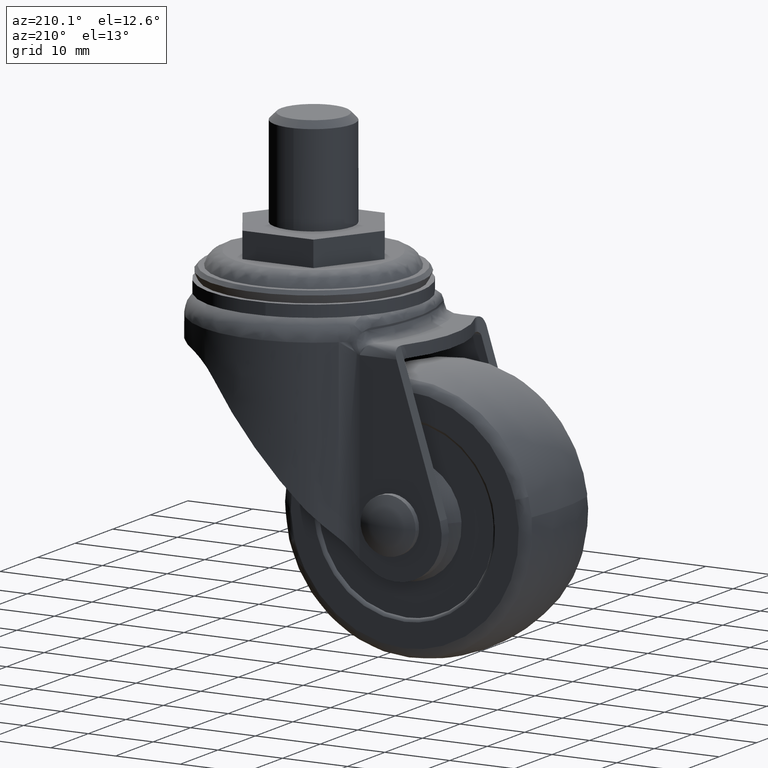
[diagram: clean part render]
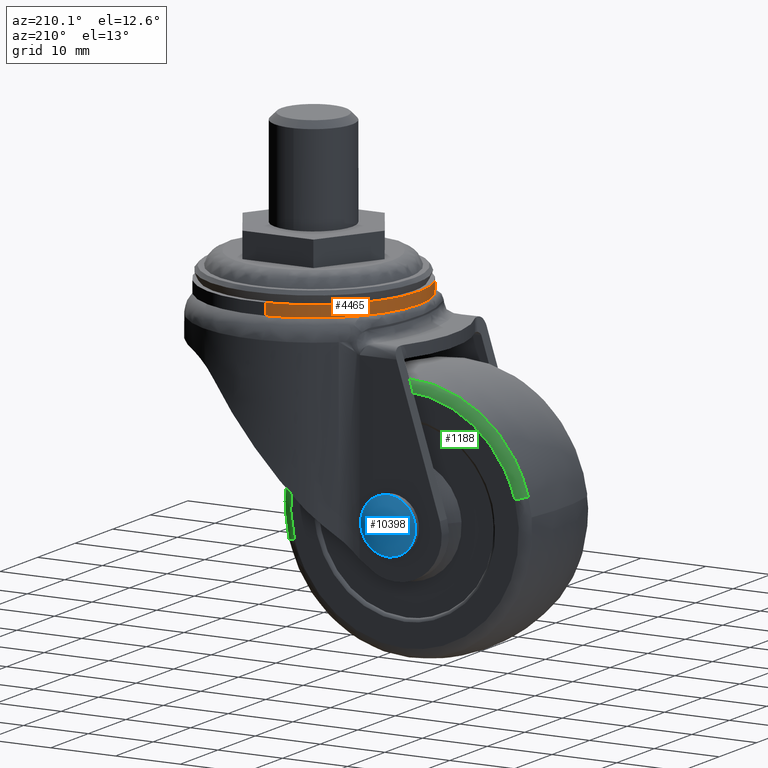
[diagram: same view with three faces highlighted in distinct colors, each labeled with its STEP entity id]
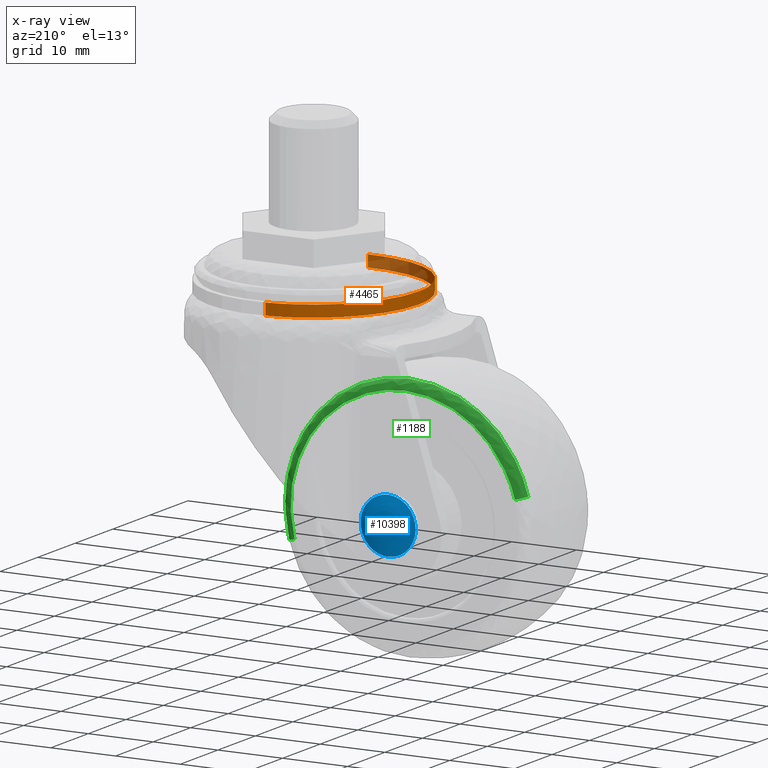
[diagram: x-ray of the same camera — body ghosted, the three highlighted faces saturated]
A machine part, auxiliary view with three faces highlighted in distinct colors.
The next image is the same camera in x-ray (body ghosted, the three faces saturated) — at least one of them is partly hidden behind the body in this view.
Their STEP definitions:

[orange] entity #4465 — the highlighted face is a freeform B-spline surface patch.
#4302=CARTESIAN_POINT('',(-1.918036964130399,16.136407103312980,-8.533079999999202));
#4303=VERTEX_POINT('',#4302);
#4321=CARTESIAN_POINT('',(-1.918037202751808,16.136407074949791,-6.729810000000000));
#4322=VERTEX_POINT('',#4321);
#4323=CARTESIAN_POINT('',(-1.918037202751808,16.136407074949791,-6.729810000000000));
#4324=CARTESIAN_POINT('',(-1.918036964130399,16.136407103312980,-8.533079999999202));
#4325=QUASI_UNIFORM_CURVE('',1,(#4323,#4324),.UNSPECIFIED.,.F.,.U.);
#4326=EDGE_CURVE('',#4322,#4303,#4325,.T.);
#4345=CARTESIAN_POINT('',(0.992038767744949,-16.219690474336769,-6.729810000000001));
#4346=VERTEX_POINT('',#4345);
#4360=CARTESIAN_POINT('',(0.992038767744949,-16.219690474336769,-8.533080000000000));
#4361=VERTEX_POINT('',#4360);
#4362=CARTESIAN_POINT('',(0.992038767744949,-16.219690474336769,-6.729810000000001));
#4363=CARTESIAN_POINT('',(0.992038767744949,-16.219690474336769,-8.533080000000000));
#4364=QUASI_UNIFORM_CURVE('',1,(#4362,#4363),.UNSPECIFIED.,.F.,.U.);
#4365=EDGE_CURVE('',#4346,#4361,#4364,.T.);
#4383=CARTESIAN_POINT('',(0.992038767441426,-16.219690474355339,-6.684728249999999));
#4384=CARTESIAN_POINT('',(-15.227651706913909,-17.211729241796768,-6.684728249999999));
#4385=CARTESIAN_POINT('',(-16.219690474355339,-0.992038767441426,-6.684728249999999));
#4386=CARTESIAN_POINT('',(-17.156525696903575,14.325081726141899,-6.684728250000001));
#4387=CARTESIAN_POINT('',(-1.918056313172325,16.136404803409580,-6.684728249999999));
#4388=CARTESIAN_POINT('',(0.992038767441426,-16.219690474355339,-8.579288793750003));
#4389=CARTESIAN_POINT('',(-15.227651706913909,-17.211729241796768,-8.579288793750003));
#4390=CARTESIAN_POINT('',(-16.219690474355339,-0.992038767441426,-8.579288793750003));
#4391=CARTESIAN_POINT('',(-17.156525696903575,14.325081726141899,-8.579288793750001));
#4392=CARTESIAN_POINT('',(-1.918056313172325,16.136404803409580,-8.579288793750006));
#4400=(BOUNDED_SURFACE()B_SPLINE_SURFACE(2,1,((#4383,#4388),(#4384,#4389),(#4385,#4390),(#4386,#4391),(#4387,#4392)),.UNSPECIFIED.,.F.,.F.,.U.)B_SPLINE_SURFACE_WITH_KNOTS((3,2,3),(2,2),(0.0,26.923881554251171,52.770807846332303),(0.0,1.0),.UNSPECIFIED.)GEOMETRIC_REPRESENTATION_ITEM()RATIONAL_B_SPLINE_SURFACE(((1.0,1.0),(0.707106781186548,0.707106781186548),(1.0,1.0),(0.718822509939086,0.718822509939086),(0.977505800795127,0.977505800795127)))REPRESENTATION_ITEM('')SURFACE());
#4401=CARTESIAN_POINT('',(-16.250000000000000,0.0,-8.533080000000000));
#4402=VERTEX_POINT('',#4401);
#4403=CARTESIAN_POINT('',(-16.250000000000000,0.0,-8.533080000000000));
#4404=CARTESIAN_POINT('',(-16.250000000000007,14.432853474852854,-8.533080000000000));
#4405=CARTESIAN_POINT('',(-1.918036964130399,16.136407103312983,-8.533079999999204));
#4413=(BOUNDED_CURVE()B_SPLINE_CURVE(2,(#4403,#4404,#4405),.UNSPECIFIED.,.F.,.U.)B_SPLINE_CURVE_WITH_KNOTS((3,3),(0.0,0.229562676166187),.UNSPECIFIED.)CURVE()GEOMETRIC_REPRESENTATION_ITEM()RATIONAL_B_SPLINE_CURVE((1.0,0.731050595433021,0.956027151391627))REPRESENTATION_ITEM(''));
#4414=EDGE_CURVE('',#4402,#4303,#4413,.T.);
#4415=ORIENTED_EDGE('',*,*,#4414,.F.);
#4416=CARTESIAN_POINT('',(0.992038767744949,-16.219690474336772,-8.533080000000000));
#4417=CARTESIAN_POINT('',(0.496482403906443,-16.250000000000000,-8.533080000000000));
#4418=CARTESIAN_POINT('',(0.0,-16.250000000000000,-8.533080000000000));
#4419=CARTESIAN_POINT('',(-16.250000000000004,-16.250000000000004,-8.533080000000000));
#4420=CARTESIAN_POINT('',(-16.250000000000000,0.0,-8.533080000000000));
#4428=(BOUNDED_CURVE()B_SPLINE_CURVE(2,(#4416,#4417,#4418,#4419,#4420),.UNSPECIFIED.,.F.,.U.)B_SPLINE_CURVE_WITH_KNOTS((3,2,3),(0.739332962235510,0.750000000000000,1.0),.UNSPECIFIED.)CURVE()GEOMETRIC_REPRESENTATION_ITEM()RATIONAL_B_SPLINE_CURVE((0.976072041659361,0.987502787895816,1.0,0.707106781186547,1.0))REPRESENTATION_ITEM(''));
#4429=EDGE_CURVE('',#4361,#4402,#4428,.T.);
#4430=ORIENTED_EDGE('',*,*,#4429,.F.);
#4431=ORIENTED_EDGE('',*,*,#4365,.F.);
#4432=CARTESIAN_POINT('',(-16.250000000000000,0.0,-6.729810000000001));
#4433=VERTEX_POINT('',#4432);
#4434=CARTESIAN_POINT('',(0.992038767744949,-16.219690474336772,-6.729810000000001));
#4435=CARTESIAN_POINT('',(0.496482403906443,-16.250000000000000,-6.729810000000001));
#4436=CARTESIAN_POINT('',(0.0,-16.250000000000000,-6.729810000000001));
#4437=CARTESIAN_POINT('',(-16.250000000000004,-16.250000000000004,-6.729810000000001));
#4438=CARTESIAN_POINT('',(-16.250000000000000,0.0,-6.729810000000001));
#4446=(BOUNDED_CURVE()B_SPLINE_CURVE(2,(#4434,#4435,#4436,#4437,#4438),.UNSPECIFIED.,.F.,.U.)B_SPLINE_CURVE_WITH_KNOTS((3,2,3),(0.739332962235510,0.750000000000000,1.0),.UNSPECIFIED.)CURVE()GEOMETRIC_REPRESENTATION_ITEM()RATIONAL_B_SPLINE_CURVE((0.976072041659361,0.987502787895816,1.0,0.707106781186547,1.0))REPRESENTATION_ITEM(''));
#4447=EDGE_CURVE('',#4346,#4433,#4446,.T.);
#4448=ORIENTED_EDGE('',*,*,#4447,.T.);
#4449=CARTESIAN_POINT('',(-16.250000000000000,0.0,-6.729810000000001));
#4450=CARTESIAN_POINT('',(-16.249999999999993,14.432853259920792,-6.729810000000001));
#4451=CARTESIAN_POINT('',(-1.918037202751809,16.136407074949794,-6.729810000000000));
#4459=(BOUNDED_CURVE()B_SPLINE_CURVE(2,(#4449,#4450,#4451),.UNSPECIFIED.,.F.,.U.)B_SPLINE_CURVE_WITH_KNOTS((3,3),(0.0,0.229562673667006),.UNSPECIFIED.)CURVE()GEOMETRIC_REPRESENTATION_ITEM()RATIONAL_B_SPLINE_CURVE((1.0,0.731050598360994,0.956027146493120))REPRESENTATION_ITEM(''));
#4460=EDGE_CURVE('',#4433,#4322,#4459,.T.);
#4461=ORIENTED_EDGE('',*,*,#4460,.T.);
#4462=ORIENTED_EDGE('',*,*,#4326,.T.);
#4463=EDGE_LOOP('',(#4415,#4430,#4431,#4448,#4461,#4462));
#4464=FACE_OUTER_BOUND('',#4463,.T.);
#4465=ADVANCED_FACE('',(#4464),#4400,.T.);

[blue] entity #10398 — the highlighted face is a freeform B-spline surface patch.
#9832=CARTESIAN_POINT('',(-14.779709032360950,12.933474000000350,-32.598364545923758));
#9833=VERTEX_POINT('',#9832);
#9834=CARTESIAN_POINT('',(-19.0,12.933474000000020,-37.350005999999887));
#9835=VERTEX_POINT('',#9834);
#9836=CARTESIAN_POINT('',(-14.779709032360948,12.933474000000357,-32.598364545923758));
#9837=CARTESIAN_POINT('',(-14.750000000000005,12.933474000000022,-32.848305534458703));
#9838=CARTESIAN_POINT('',(-14.750000000000000,12.933474000000020,-33.100005999999887));
#9839=CARTESIAN_POINT('',(-14.750000000000005,12.933474000000022,-37.350005999999887));
#9840=CARTESIAN_POINT('',(-19.0,12.933474000000020,-37.350005999999887));
#9848=(BOUNDED_CURVE()B_SPLINE_CURVE(2,(#9836,#9837,#9838,#9839,#9840),.UNSPECIFIED.,.F.,.U.)B_SPLINE_CURVE_WITH_KNOTS((3,2,3),(0.229562635427846,0.250000000000000,0.500000000000000),.UNSPECIFIED.)CURVE()GEOMETRIC_REPRESENTATION_ITEM()RATIONAL_B_SPLINE_CURVE((0.956027071542674,0.976056138025592,1.0,0.707106781186548,1.0))REPRESENTATION_ITEM(''));
#9849=EDGE_CURVE('',#9833,#9835,#9848,.T.);
#9890=CARTESIAN_POINT('',(-23.242072893290828,12.933474000000020,-33.359462293057497));
#9891=VERTEX_POINT('',#9890);
#9897=CARTESIAN_POINT('',(-19.0,12.933474000000020,-37.350005999999887));
#9898=CARTESIAN_POINT('',(-22.998000784284127,12.933474000000022,-37.350005999999887));
#9899=CARTESIAN_POINT('',(-23.242072893290832,12.933474000000027,-33.359462293057504));
#9907=(BOUNDED_CURVE()B_SPLINE_CURVE(2,(#9897,#9898,#9899),.UNSPECIFIED.,.F.,.U.)B_SPLINE_CURVE_WITH_KNOTS((3,3),(0.500000000000000,0.739332962239165),.UNSPECIFIED.)CURVE()GEOMETRIC_REPRESENTATION_ITEM()RATIONAL_B_SPLINE_CURVE((1.0,0.719603993286450,0.976072041667194))REPRESENTATION_ITEM(''));
#9908=EDGE_CURVE('',#9835,#9891,#9907,.T.);
#9931=CARTESIAN_POINT('',(-19.0,12.933474000000020,-28.850005999999901));
#9932=VERTEX_POINT('',#9931);
#9933=CARTESIAN_POINT('',(-19.0,12.933474000000020,-28.850005999999901));
#9934=CARTESIAN_POINT('',(-15.225254622886796,12.933474000000022,-28.850005999999894));
#9935=CARTESIAN_POINT('',(-14.779709032360948,12.933474000000356,-32.598364545923758));
#9943=(BOUNDED_CURVE()B_SPLINE_CURVE(2,(#9933,#9934,#9935),.UNSPECIFIED.,.F.,.U.)B_SPLINE_CURVE_WITH_KNOTS((3,3),(0.0,0.229562635427846),.UNSPECIFIED.)CURVE()GEOMETRIC_REPRESENTATION_ITEM()RATIONAL_B_SPLINE_CURVE((1.0,0.731050643160956,0.956027071542674))REPRESENTATION_ITEM(''));
#9944=EDGE_CURVE('',#9932,#9833,#9943,.T.);
#9946=CARTESIAN_POINT('',(-23.242072893290825,12.933474000000025,-33.359462293057504));
#9947=CARTESIAN_POINT('',(-23.250000000000000,12.933474000000023,-33.229855244053461));
#9948=CARTESIAN_POINT('',(-23.250000000000000,12.933474000000020,-33.100005999999887));
#9949=CARTESIAN_POINT('',(-23.250000000000000,12.933474000000022,-28.850005999999894));
#9950=CARTESIAN_POINT('',(-19.0,12.933474000000020,-28.850005999999901));
#9958=(BOUNDED_CURVE()B_SPLINE_CURVE(2,(#9946,#9947,#9948,#9949,#9950),.UNSPECIFIED.,.F.,.U.)B_SPLINE_CURVE_WITH_KNOTS((3,2,3),(0.739332962239164,0.750000000000000,1.0),.UNSPECIFIED.)CURVE()GEOMETRIC_REPRESENTATION_ITEM()RATIONAL_B_SPLINE_CURVE((0.976072041667192,0.987502787900097,1.0,0.707106781186548,1.0))REPRESENTATION_ITEM(''));
#9959=EDGE_CURVE('',#9891,#9932,#9958,.T.);
#10368=CARTESIAN_POINT('',(-23.311764691116675,11.619564877409294,-28.788145863151065));
#10369=CARTESIAN_POINT('',(-21.308536943298023,12.725550219659395,-28.482829909311338));
#10370=CARTESIAN_POINT('',(-16.691450061466895,12.725550219659395,-28.482829909311338));
#10371=CARTESIAN_POINT('',(-14.688214247089745,11.619553249120623,-28.788149073231640));
#10372=CARTESIAN_POINT('',(-23.617088360619871,12.725602651942589,-30.791410717483490));
#10373=CARTESIAN_POINT('',(-21.484465801078269,14.000158000000001,-30.615485202493399));
#10374=CARTESIAN_POINT('',(-16.515520213346480,14.000158000000001,-30.615485202493399));
#10375=CARTESIAN_POINT('',(-14.382889329567362,12.725589318507524,-30.791412557883316));
#10376=CARTESIAN_POINT('',(-23.617088360619871,12.725602651942589,-35.408601197579820));
#10377=CARTESIAN_POINT('',(-21.484465801078269,14.000158000000001,-35.584526706097392));
#10378=CARTESIAN_POINT('',(-16.515520213346480,14.000158000000001,-35.584526706097392));
#10379=CARTESIAN_POINT('',(-14.382889329567362,12.725589318507524,-35.408599357180087));
#10380=CARTESIAN_POINT('',(-23.311764712097560,11.619564953412715,-37.411865999190702));
#10381=CARTESIAN_POINT('',(-21.308536955326680,12.725550306807227,-37.717181944873943));
#10382=CARTESIAN_POINT('',(-16.691450049438167,12.725550306807227,-37.717181944873943));
#10383=CARTESIAN_POINT('',(-14.688214226108782,11.619553325123919,-37.411862789110209));
#10391=(BOUNDED_SURFACE()B_SPLINE_SURFACE(2,2,((#10368,#10372,#10376,#10380),(#10369,#10373,#10377,#10381),(#10370,#10374,#10378,#10382),(#10371,#10375,#10379,#10383)),.UNSPECIFIED.,.F.,.F.,.U.)B_SPLINE_SURFACE_WITH_KNOTS((3,1,3),(3,1,3),(0.0,4.786549109017365,9.573125162516210),(0.0,4.786655064633410,9.573309953159098),.UNSPECIFIED.)GEOMETRIC_REPRESENTATION_ITEM()RATIONAL_B_SPLINE_SURFACE(((1.152412517407035,1.076204571811451,1.076204571811451,1.152412511799441),(1.076207945595584,1.0,1.0,1.076207939987991),(1.076207945595584,1.0,1.0,1.076207939987991),(1.152413375352250,1.076205429756666,1.076205429756666,1.152413369744657)))REPRESENTATION_ITEM('')SURFACE());
#10392=ORIENTED_EDGE('',*,*,#9944,.T.);
#10393=ORIENTED_EDGE('',*,*,#9849,.T.);
#10394=ORIENTED_EDGE('',*,*,#9908,.T.);
#10395=ORIENTED_EDGE('',*,*,#9959,.T.);
#10396=EDGE_LOOP('',(#10392,#10393,#10394,#10395));
#10397=FACE_OUTER_BOUND('',#10396,.T.);
#10398=ADVANCED_FACE('',(#10397),#10391,.T.);

[green] entity #1188 — the highlighted face is a freeform B-spline surface patch.
#1069=CARTESIAN_POINT('',(-2.071128198734256,8.497234547099403,-37.674106275790763));
#1070=CARTESIAN_POINT('',(2.502972077056607,8.497234547099405,-20.745234474525013));
#1071=CARTESIAN_POINT('',(-14.425899724209140,8.497234547099403,-16.171134198734155));
#1072=CARTESIAN_POINT('',(-31.354771525474884,8.497234547099405,-11.597033922943286));
#1073=CARTESIAN_POINT('',(-35.928871801265750,8.497234547099403,-28.525905724209029));
#1074=CARTESIAN_POINT('',(-0.798234179039494,8.577411005825313,-38.018036158117781));
#1075=CARTESIAN_POINT('',(4.119795979078379,8.577411005825312,-19.816270337157256));
#1076=CARTESIAN_POINT('',(-14.081969841882129,8.577411005825313,-14.898240179039385));
#1077=CARTESIAN_POINT('',(-32.283735662842638,8.577411005825312,-9.980210020921513));
#1078=CARTESIAN_POINT('',(-37.201765820960510,8.577411005825313,-28.181975841882029));
#1079=CARTESIAN_POINT('',(-0.560541355133282,7.279584868845040,-38.082259623458292));
#1080=CARTESIAN_POINT('',(4.421712268325122,7.279584868845040,-19.642800978591580));
#1081=CARTESIAN_POINT('',(-14.017746376541600,7.279584868845040,-14.660547355133176));
#1082=CARTESIAN_POINT('',(-32.457205021408313,7.279584868845040,-9.678293731674771));
#1083=CARTESIAN_POINT('',(-37.439458644866733,7.279584868845040,-28.117752376541493));
#1091=(BOUNDED_SURFACE()B_SPLINE_SURFACE(2,2,((#1069,#1074,#1079),(#1070,#1075,#1080),(#1071,#1076,#1081),(#1072,#1077,#1082),(#1073,#1078,#1083)),.UNSPECIFIED.,.F.,.F.,.U.)B_SPLINE_SURFACE_WITH_KNOTS((3,2,3),(3,3),(0.0,31.647064937976129,63.294129875952251),(0.0,2.265341836259046),.UNSPECIFIED.)GEOMETRIC_REPRESENTATION_ITEM()RATIONAL_B_SPLINE_SURFACE(((0.914603728835905,0.686786988757744,0.915677875649929),(0.646722498758371,0.485631736981290,0.647482035254557),(0.914603728835905,0.686786988757744,0.915677875649929),(0.646722498758371,0.485631736981290,0.647482035254557),(0.914603728835905,0.686786988757744,0.915677875649929)))REPRESENTATION_ITEM('')SURFACE());
#1092=CARTESIAN_POINT('',(-0.579518657563386,7.368420234131580,-38.077114558328233));
#1093=VERTEX_POINT('',#1092);
#1094=CARTESIAN_POINT('',(-19.0,7.368414770911453,-14.018973285122460));
#1095=VERTEX_POINT('',#1094);
#1096=CARTESIAN_POINT('',(-0.579518657563386,7.368420234131580,-38.077114558328233));
#1097=CARTESIAN_POINT('',(0.081031114063391,7.368419755344560,-35.632393158122042));
#1098=CARTESIAN_POINT('',(0.081031114705274,7.368419238753664,-33.100005201876037));
#1099=CARTESIAN_POINT('',(0.081031119541739,7.368415346345582,-14.018973284121804));
#1100=CARTESIAN_POINT('',(-19.0,7.368414770911453,-14.018973285122460));
#1108=(BOUNDED_CURVE()B_SPLINE_CURVE(2,(#1096,#1097,#1098,#1099,#1100),.UNSPECIFIED.,.F.,.U.)B_SPLINE_CURVE_WITH_KNOTS((3,2,3),(0.205522345874817,0.250000000000000,0.500000000000000),.UNSPECIFIED.)CURVE()GEOMETRIC_REPRESENTATION_ITEM()RATIONAL_B_SPLINE_CURVE((0.914323795881473,0.947891186872015,1.0,0.707106781186547,1.0))REPRESENTATION_ITEM(''));
#1109=EDGE_CURVE('',#1093,#1095,#1108,.T.);
#1110=ORIENTED_EDGE('',*,*,#1109,.F.);
#1111=CARTESIAN_POINT('',(-1.983238123140746,8.499999999999947,-37.697853754345672));
#1112=VERTEX_POINT('',#1111);
#1113=CARTESIAN_POINT('',(-1.983238123140747,8.499999999999947,-37.697853754345665));
#1114=CARTESIAN_POINT('',(-0.856309203273621,8.500000393663271,-38.002335819736068));
#1115=CARTESIAN_POINT('',(-0.579518657563386,7.368420234131580,-38.077114558328240));
#1123=(BOUNDED_CURVE()B_SPLINE_CURVE(2,(#1113,#1114,#1115),.UNSPECIFIED.,.F.,.U.)B_SPLINE_CURVE_WITH_KNOTS((3,3),(-1.686821567814749,-0.309619208838691),.UNSPECIFIED.)CURVE()GEOMETRIC_REPRESENTATION_ITEM()RATIONAL_B_SPLINE_CURVE((0.894853642542430,0.706586329772604,0.895829275001290))REPRESENTATION_ITEM(''));
#1124=EDGE_CURVE('',#1112,#1093,#1123,.T.);
#1125=ORIENTED_EDGE('',*,*,#1124,.F.);
#1126=CARTESIAN_POINT('',(-19.0,8.500000000000000,-15.473026999999901));
#1127=VERTEX_POINT('',#1126);
#1128=CARTESIAN_POINT('',(-1.983238123140746,8.499999999999947,-37.697853754345680));
#1129=CARTESIAN_POINT('',(-1.373020999999999,8.500000000000000,-35.439423272947117));
#1130=CARTESIAN_POINT('',(-1.373020999999999,8.500000000000000,-33.100005999999887));
#1131=CARTESIAN_POINT('',(-1.373020999999999,8.500000000000000,-15.473026999999901));
#1132=CARTESIAN_POINT('',(-19.0,8.500000000000000,-15.473026999999901));
#1140=(BOUNDED_CURVE()B_SPLINE_CURVE(2,(#1128,#1129,#1130,#1131,#1132),.UNSPECIFIED.,.F.,.U.)B_SPLINE_CURVE_WITH_KNOTS((3,2,3),(0.205522207669771,0.250000000000000,0.500000000000000),.UNSPECIFIED.)CURVE()GEOMETRIC_REPRESENTATION_ITEM()RATIONAL_B_SPLINE_CURVE((0.914323587274300,0.947891024954732,1.0,0.707106781186547,1.0))REPRESENTATION_ITEM(''));
#1141=EDGE_CURVE('',#1112,#1127,#1140,.T.);
#1142=ORIENTED_EDGE('',*,*,#1141,.T.);
#1143=CARTESIAN_POINT('',(-36.016761876859263,8.499999999999947,-28.502158245654119));
#1144=VERTEX_POINT('',#1143);
#1145=CARTESIAN_POINT('',(-19.0,8.500000000000000,-15.473026999999901));
#1146=CARTESIAN_POINT('',(-32.496352864090724,8.500000000000000,-15.473026999999904));
#1147=CARTESIAN_POINT('',(-36.016761876859256,8.499999999999947,-28.502158245654115));
#1155=(BOUNDED_CURVE()B_SPLINE_CURVE(2,(#1145,#1146,#1147),.UNSPECIFIED.,.F.,.U.)B_SPLINE_CURVE_WITH_KNOTS((3,3),(0.500000000000000,0.705522207669770),.UNSPECIFIED.)CURVE()GEOMETRIC_REPRESENTATION_ITEM()RATIONAL_B_SPLINE_CURVE((1.0,0.759215756231816,0.914323587274299))REPRESENTATION_ITEM(''));
#1156=EDGE_CURVE('',#1127,#1144,#1155,.T.);
#1157=ORIENTED_EDGE('',*,*,#1156,.T.);
#1158=CARTESIAN_POINT('',(-37.420475569397823,7.368427126377364,-28.122881512831661));
#1159=VERTEX_POINT('',#1158);
#1160=CARTESIAN_POINT('',(-36.016761876859249,8.499999999999947,-28.502158245654119));
#1161=CARTESIAN_POINT('',(-37.143683316075439,8.500000437809010,-28.197669457188002));
#1162=CARTESIAN_POINT('',(-37.420475569397823,7.368427126377364,-28.122881512831665));
#1170=(BOUNDED_CURVE()B_SPLINE_CURVE(2,(#1160,#1161,#1162),.UNSPECIFIED.,.F.,.U.)B_SPLINE_CURVE_WITH_KNOTS((3,3),(-1.686821567814751,-0.309624466043706),.UNSPECIFIED.)CURVE()GEOMETRIC_REPRESENTATION_ITEM()RATIONAL_B_SPLINE_CURVE((0.894853642542431,0.706587048446845,0.895827830209729))REPRESENTATION_ITEM(''));
#1171=EDGE_CURVE('',#1144,#1159,#1170,.T.);
#1172=ORIENTED_EDGE('',*,*,#1171,.T.);
#1173=CARTESIAN_POINT('',(-19.0,7.368414770911453,-14.018973285122460));
#1174=CARTESIAN_POINT('',(-33.609668540716370,7.368420592752342,-14.018974060697134));
#1175=CARTESIAN_POINT('',(-37.420475569397816,7.368427126377365,-28.122881512831658));
#1183=(BOUNDED_CURVE()B_SPLINE_CURVE(2,(#1173,#1174,#1175),.UNSPECIFIED.,.F.,.U.)B_SPLINE_CURVE_WITH_KNOTS((3,3),(0.500000000000000,0.705522210918239),.UNSPECIFIED.)CURVE()GEOMETRIC_REPRESENTATION_ITEM()RATIONAL_B_SPLINE_CURVE((1.0,0.759215752425999,0.914323592177544))REPRESENTATION_ITEM(''));
#1184=EDGE_CURVE('',#1095,#1159,#1183,.T.);
#1185=ORIENTED_EDGE('',*,*,#1184,.F.);
#1186=EDGE_LOOP('',(#1110,#1125,#1142,#1157,#1172,#1185));
#1187=FACE_OUTER_BOUND('',#1186,.T.);
#1188=ADVANCED_FACE('',(#1187),#1091,.T.);